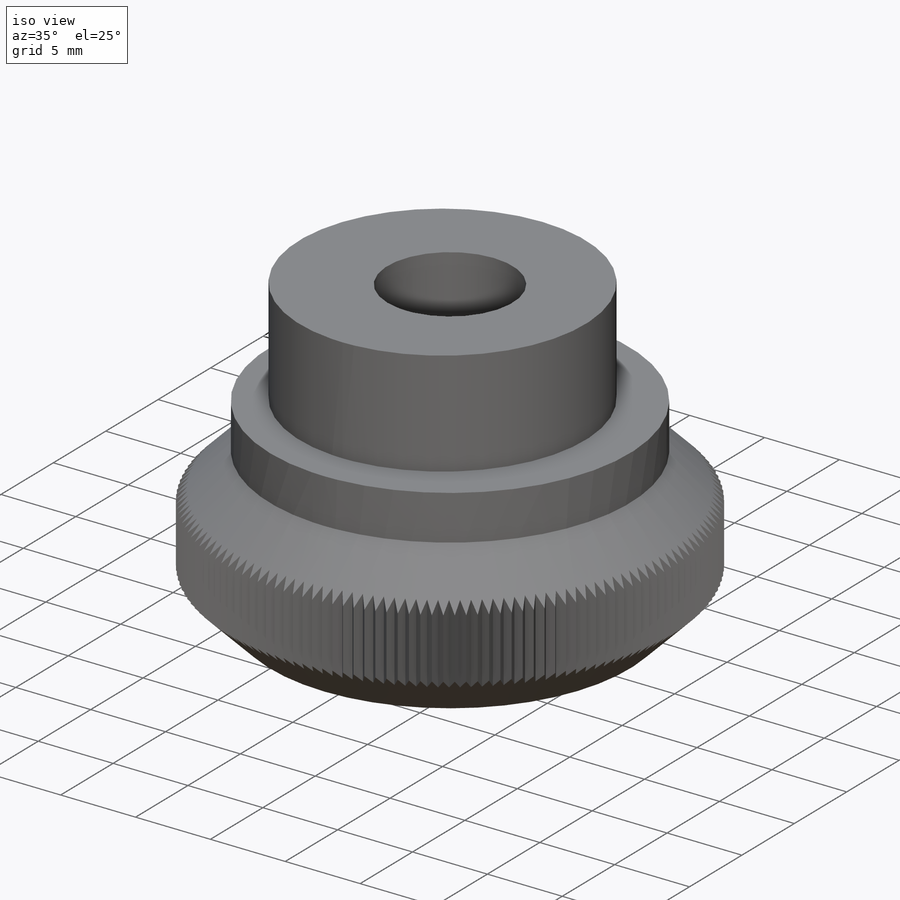
[diagram: iso view]
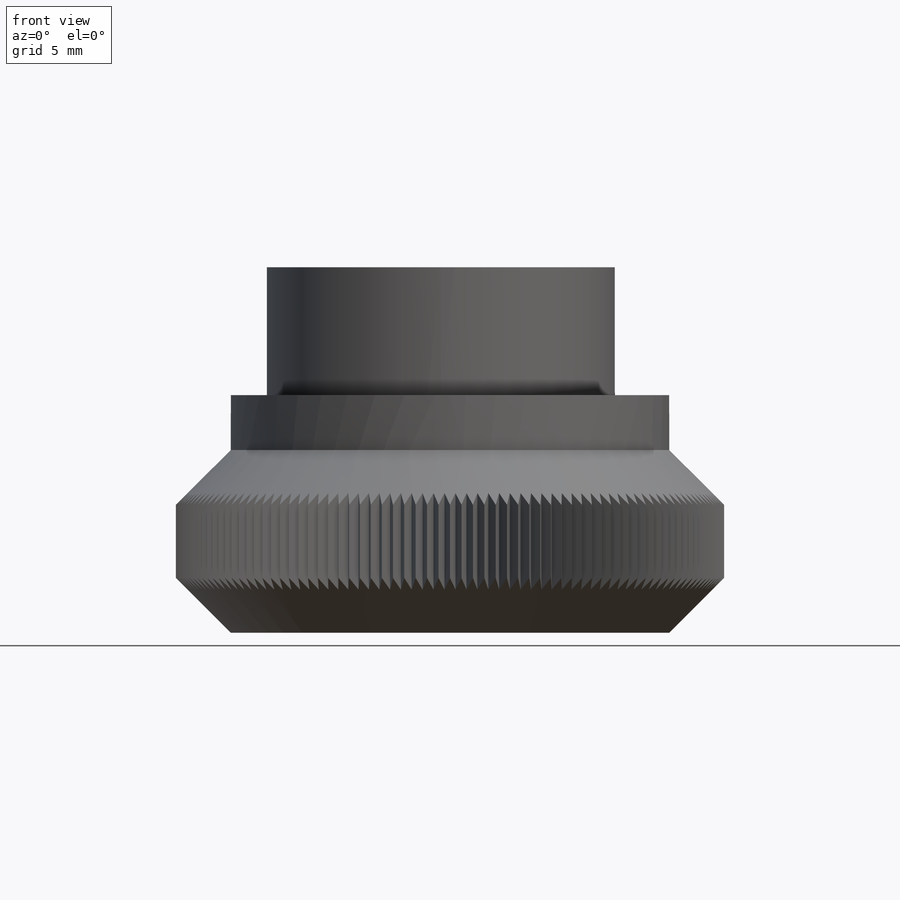
[diagram: front view]
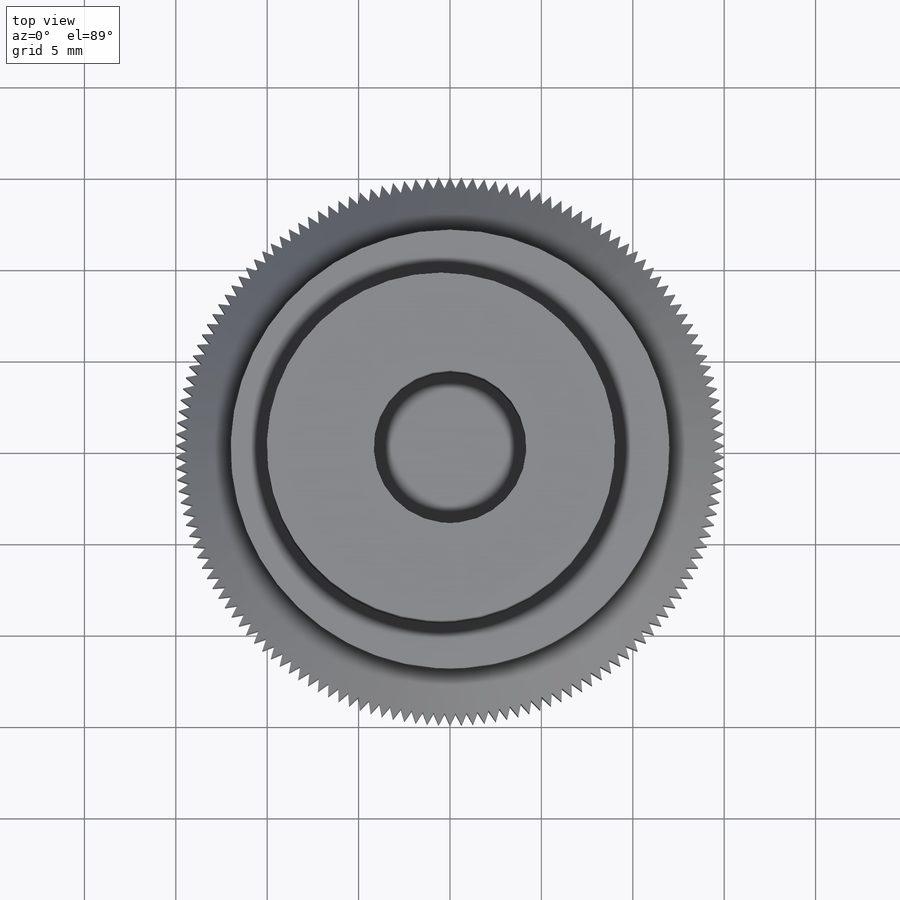
[diagram: top view]
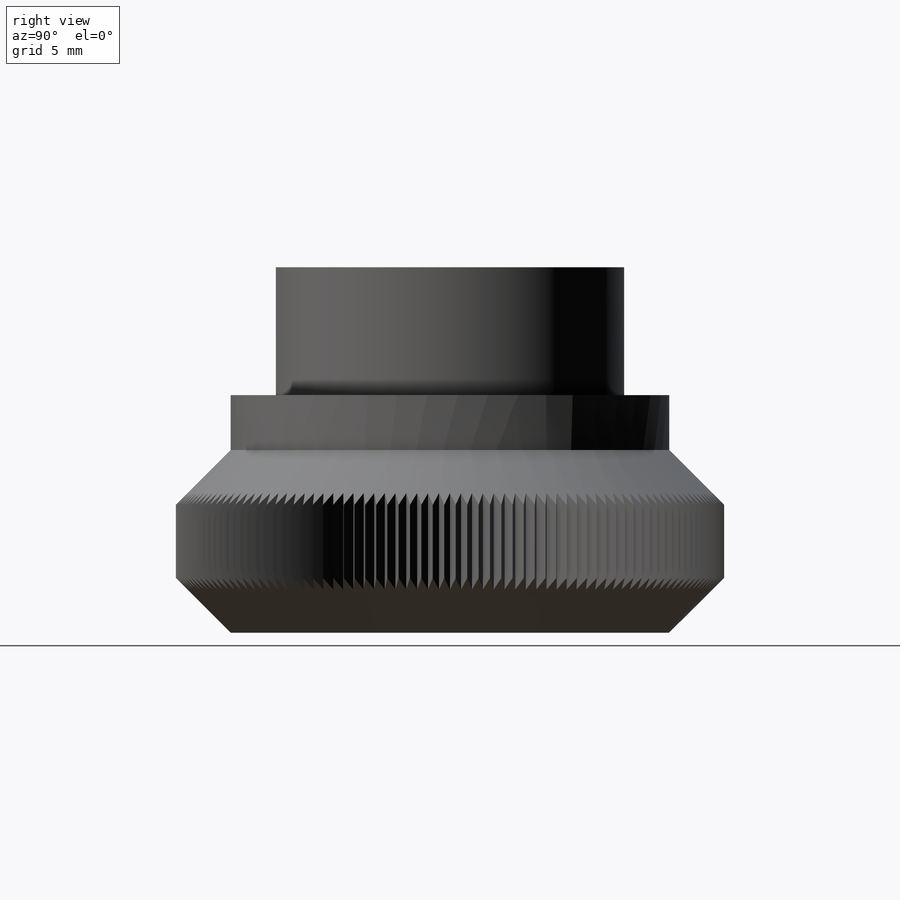
[diagram: right view]
SOLIDWORKS PART (.sldprt)
format: sldprt  version: not decoded by parser v0  size: 647,680 bytes
history: native  units: mm
features: sketch x6, extrude x4, cut_extrude x2, material x1, chamfer x1 (+16 scaffold rows collapsed)
feature tree (30):
  scaffold x16  (default folders/planes/origin — collapsed)
  material  "Material <not specified>"
  sketch  "Sketch1"  dims[D1=30.0mm D2=8.35mm]
  extrude  "Boss-Extrude1"  Depth=10mm
  sketch  "Sketch2"  dims[c1.D1=19.05mm c1.D3=19.05mm c2.D1=19.05mm c2.D2=0.5mm]
  extrude  "Boss-Extrude2"  Depth=10mm
  chamfer  "Chamfer1"  Distance=3mm Angle=45deg
  sketch  "Sketch4"  dims[D1=11.0mm]
  cut_extrude  "Cut-Extrude1"  Depth=12.5mm
  sketch  "Sketch5"  dims[D1=150.0]
  cut_extrude  "Cut-Extrude2"  [1 undecoded]
  sketch  "Sketch6"
  extrude  "Boss-Extrude3"  Depth=3mm
  sketch  "Sketch7"
  extrude  "Boss-Extrude4"  Depth=1mm
decode coverage: 10 of 13 modeling features carry decoded parameters
note: 1 parameter value undecoded
note: suppression state not decoded; provenance and decode notes live in map.json
